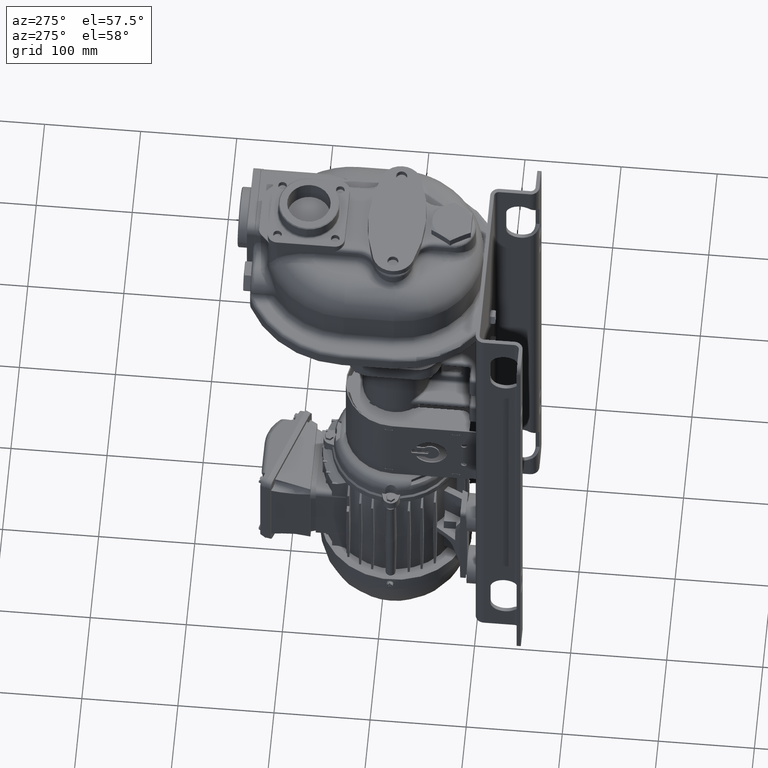
[diagram: clean part render]
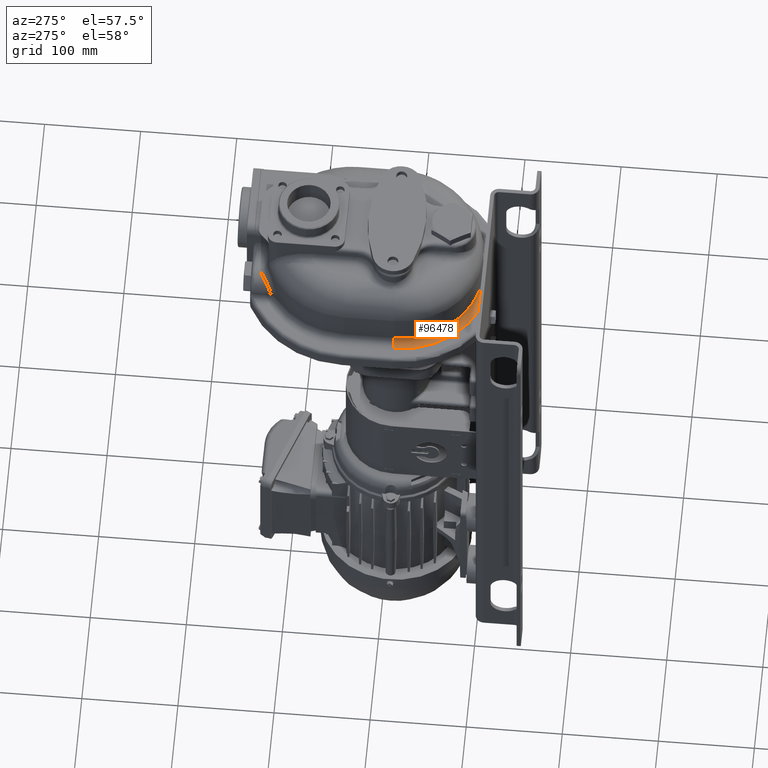
[diagram: same view with one face highlighted and labeled with its STEP entity id]
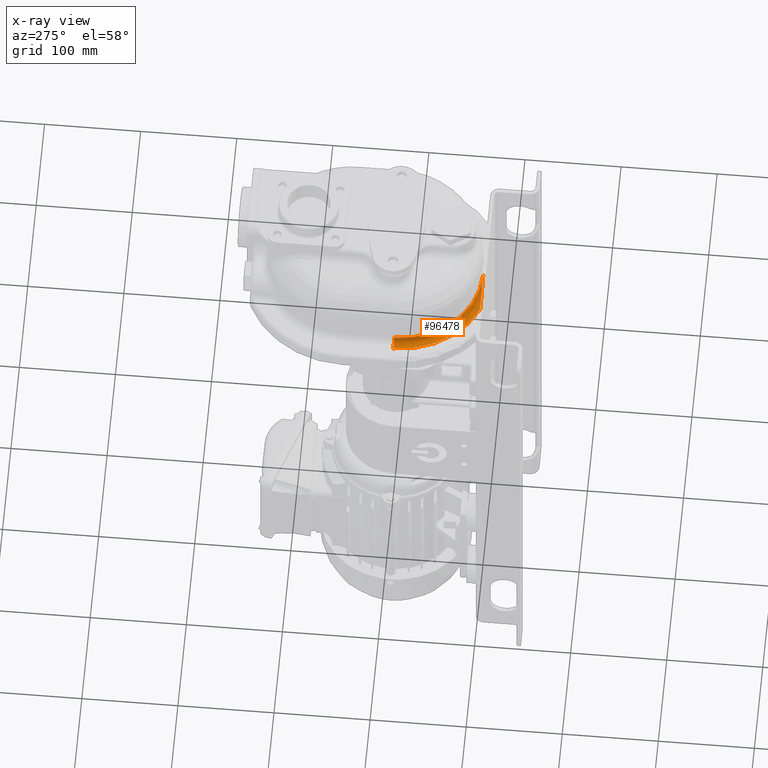
[diagram: x-ray of the same camera — body ghosted, the highlighted face saturated]
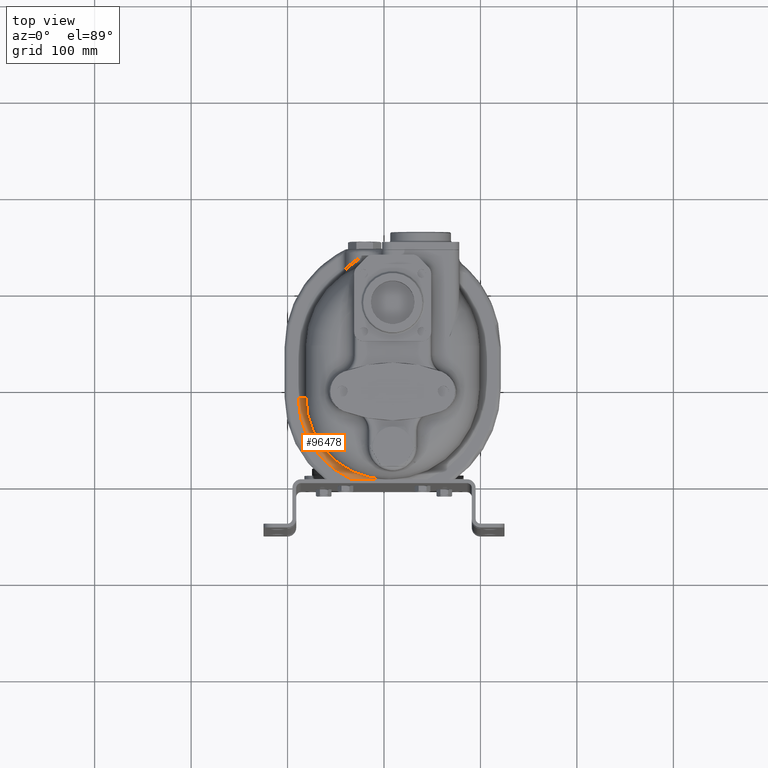
[diagram: same view with one face highlighted and labeled with its STEP entity id]
A machine part, auxiliary view. The second image highlights one B-rep face of the part: STEP entity #96478.
The next image is the same camera in x-ray: the body ghosted, the highlighted face saturated — about 0% of this face is hidden behind the body in this view.
A second angle (top view) of the same face is appended — the face is thin or edge-on in the first view.
In plain terms, the highlighted toroidal blend (fillet) surface has major radius 93.5 mm and minor (blend) radius 8 mm.
Its self-contained STEP definition (entity closure, byte-faithful):
#37626=CARTESIAN_POINT('',(4.5E0,8.55E1,1.368E2));
#37627=DIRECTION('',(0.E0,0.E0,1.E0));
#37628=DIRECTION('',(-1.E0,0.E0,0.E0));
#37629=AXIS2_PLACEMENT_3D('',#37626,#37627,#37628);
#37640=CARTESIAN_POINT('',(4.5E0,0.E0,1.368E2));
#37641=CARTESIAN_POINT('',(3.164731065386E0,0.E0,1.363915577299E2));
#37642=CARTESIAN_POINT('',(6.162462773212E-1,0.E0,1.356123157456E2));
#37643=CARTESIAN_POINT('',(-2.862438601426E0,0.E0,1.345674013248E2));
#37644=CARTESIAN_POINT('',(-5.947688547347E0,0.E0,1.336686982114E2));
#37645=CARTESIAN_POINT('',(-8.653772064124E0,0.E0,1.329110721161E2));
#37646=CARTESIAN_POINT('',(-1.103019156169E1,0.E0,1.322755046106E2));
#37647=CARTESIAN_POINT('',(-1.314063280767E1,0.E0,1.317387266156E2));
#37648=CARTESIAN_POINT('',(-1.505577946901E1,0.E0,1.312774474194E2));
#37649=CARTESIAN_POINT('',(-1.681781309189E1,0.E0,1.308774620256E2));
#37650=CARTESIAN_POINT('',(-1.845511876774E1,0.E0,1.305289653308E2));
#37651=CARTESIAN_POINT('',(-1.998747420883E1,0.E0,1.302249140317E2));
#37652=CARTESIAN_POINT('',(-2.142934951853E1,-1.833144310346E-14,
1.299599710669E2));
#37653=CARTESIAN_POINT('',(-2.279174956050E1,6.841386741139E-14,
1.297299314016E2));
#37654=CARTESIAN_POINT('',(-2.408332567721E1,-2.553240265421E-13,
1.295313734725E2));
#37655=CARTESIAN_POINT('',(-2.531099698934E1,9.528822387571E-13,
1.293614528753E2));
#37656=CARTESIAN_POINT('',(-2.648036114372E1,-3.556204928486E-12,
1.292177600723E2));
#37657=CARTESIAN_POINT('',(-2.759605603820E1,1.327193747519E-11,
1.290982106011E2));
#37658=CARTESIAN_POINT('',(-2.866199942953E1,-4.953154497227E-11,
1.290009718873E2));
#37659=CARTESIAN_POINT('',(-2.968153999786E1,1.848542424139E-10,
1.289244142493E2));
#37660=CARTESIAN_POINT('',(-3.065750593460E1,-6.898854246832E-10,
1.288670741768E2));
#37661=CARTESIAN_POINT('',(-3.159247642062E1,2.574687456319E-9,
1.288276194818E2));
#37662=CARTESIAN_POINT('',(-3.248835258320E1,-9.608864400593E-9,
1.288048326800E2));
#37663=CARTESIAN_POINT('',(-3.306143736628E1,2.070422529717E-8,1.288E2));
#37664=CARTESIAN_POINT('',(-3.334177161871E1,2.070422529717E-8,1.288E2));
#37666=CARTESIAN_POINT('',(-8.9E1,8.55E1,1.368E2));
#37667=DIRECTION('',(0.E0,-1.E0,0.E0));
#37668=DIRECTION('',(0.E0,0.E0,-1.E0));
#37669=AXIS2_PLACEMENT_3D('',#37666,#37667,#37668);
#37707=CARTESIAN_POINT('',(4.5E0,8.55E1,1.288E2));
#37708=DIRECTION('',(0.E0,0.E0,1.E0));
#37709=DIRECTION('',(-1.E0,0.E0,0.E0));
#37710=AXIS2_PLACEMENT_3D('',#37707,#37708,#37709);
#50916=CARTESIAN_POINT('',(-8.9E1,8.55E1,1.288E2));
#50917=VERTEX_POINT('',#50916);
#50918=CARTESIAN_POINT('',(-8.1E1,8.55E1,1.368E2));
#50919=VERTEX_POINT('',#50918);
#50920=CARTESIAN_POINT('',(4.5E0,0.E0,1.368E2));
#50921=VERTEX_POINT('',#50920);
#57679=CARTESIAN_POINT('',(-3.334177161871E1,2.070422529717E-8,1.288E2));
#57681=VERTEX_POINT('',#57679);
#96465=CARTESIAN_POINT('',(4.5E0,8.55E1,1.368E2));
#96466=DIRECTION('',(0.E0,0.E0,-1.E0));
#96467=DIRECTION('',(-9.999999673648E-1,2.554806989755E-4,0.E0));
#96468=AXIS2_PLACEMENT_3D('',#96465,#96466,#96467);
#96469=TOROIDAL_SURFACE('',#96468,9.35E1,8.E0);
#96470=ORIENTED_EDGE('',*,*,#59146,.T.);
#96472=ORIENTED_EDGE('',*,*,#96471,.F.);
#96474=ORIENTED_EDGE('',*,*,#96473,.T.);
#96475=ORIENTED_EDGE('',*,*,#96455,.T.);
#96476=EDGE_LOOP('',(#96470,#96472,#96474,#96475));
#96477=FACE_OUTER_BOUND('',#96476,.F.);
#96478=ADVANCED_FACE('',(#96477),#96469,.F.);
#37630=CIRCLE('',#37629,8.55E1);
#37665=B_SPLINE_CURVE_WITH_KNOTS('',3,(#37640,#37641,#37642,#37643,#37644,
#37645,#37646,#37647,#37648,#37649,#37650,#37651,#37652,#37653,#37654,#37655,
#37656,#37657,#37658,#37659,#37660,#37661,#37662,#37663,#37664),.UNSPECIFIED.,
.F.,.F.,(4,1,1,1,1,1,1,1,1,1,1,1,1,1,1,1,1,1,1,1,1,1,4),(0.E0,4.545454545455E-2,
9.090909090909E-2,1.363636363636E-1,1.818181818182E-1,2.272727272727E-1,
2.727272727273E-1,3.181818181818E-1,3.636363636364E-1,4.090909090909E-1,
4.545454545455E-1,5.E-1,5.454545454545E-1,5.909090909091E-1,6.363636363636E-1,
6.818181818182E-1,7.272727272727E-1,7.727272727273E-1,8.181818181818E-1,
8.636363636364E-1,9.090909090909E-1,9.545454545455E-1,1.E0),.UNSPECIFIED.);
#37670=CIRCLE('',#37669,8.E0);
#37711=CIRCLE('',#37710,9.35E1);
#59146=EDGE_CURVE('',#50921,#57681,#37665,.T.);
#96455=EDGE_CURVE('',#50919,#50921,#37630,.T.);
#96471=EDGE_CURVE('',#50917,#57681,#37711,.T.);
#96473=EDGE_CURVE('',#50917,#50919,#37670,.T.);